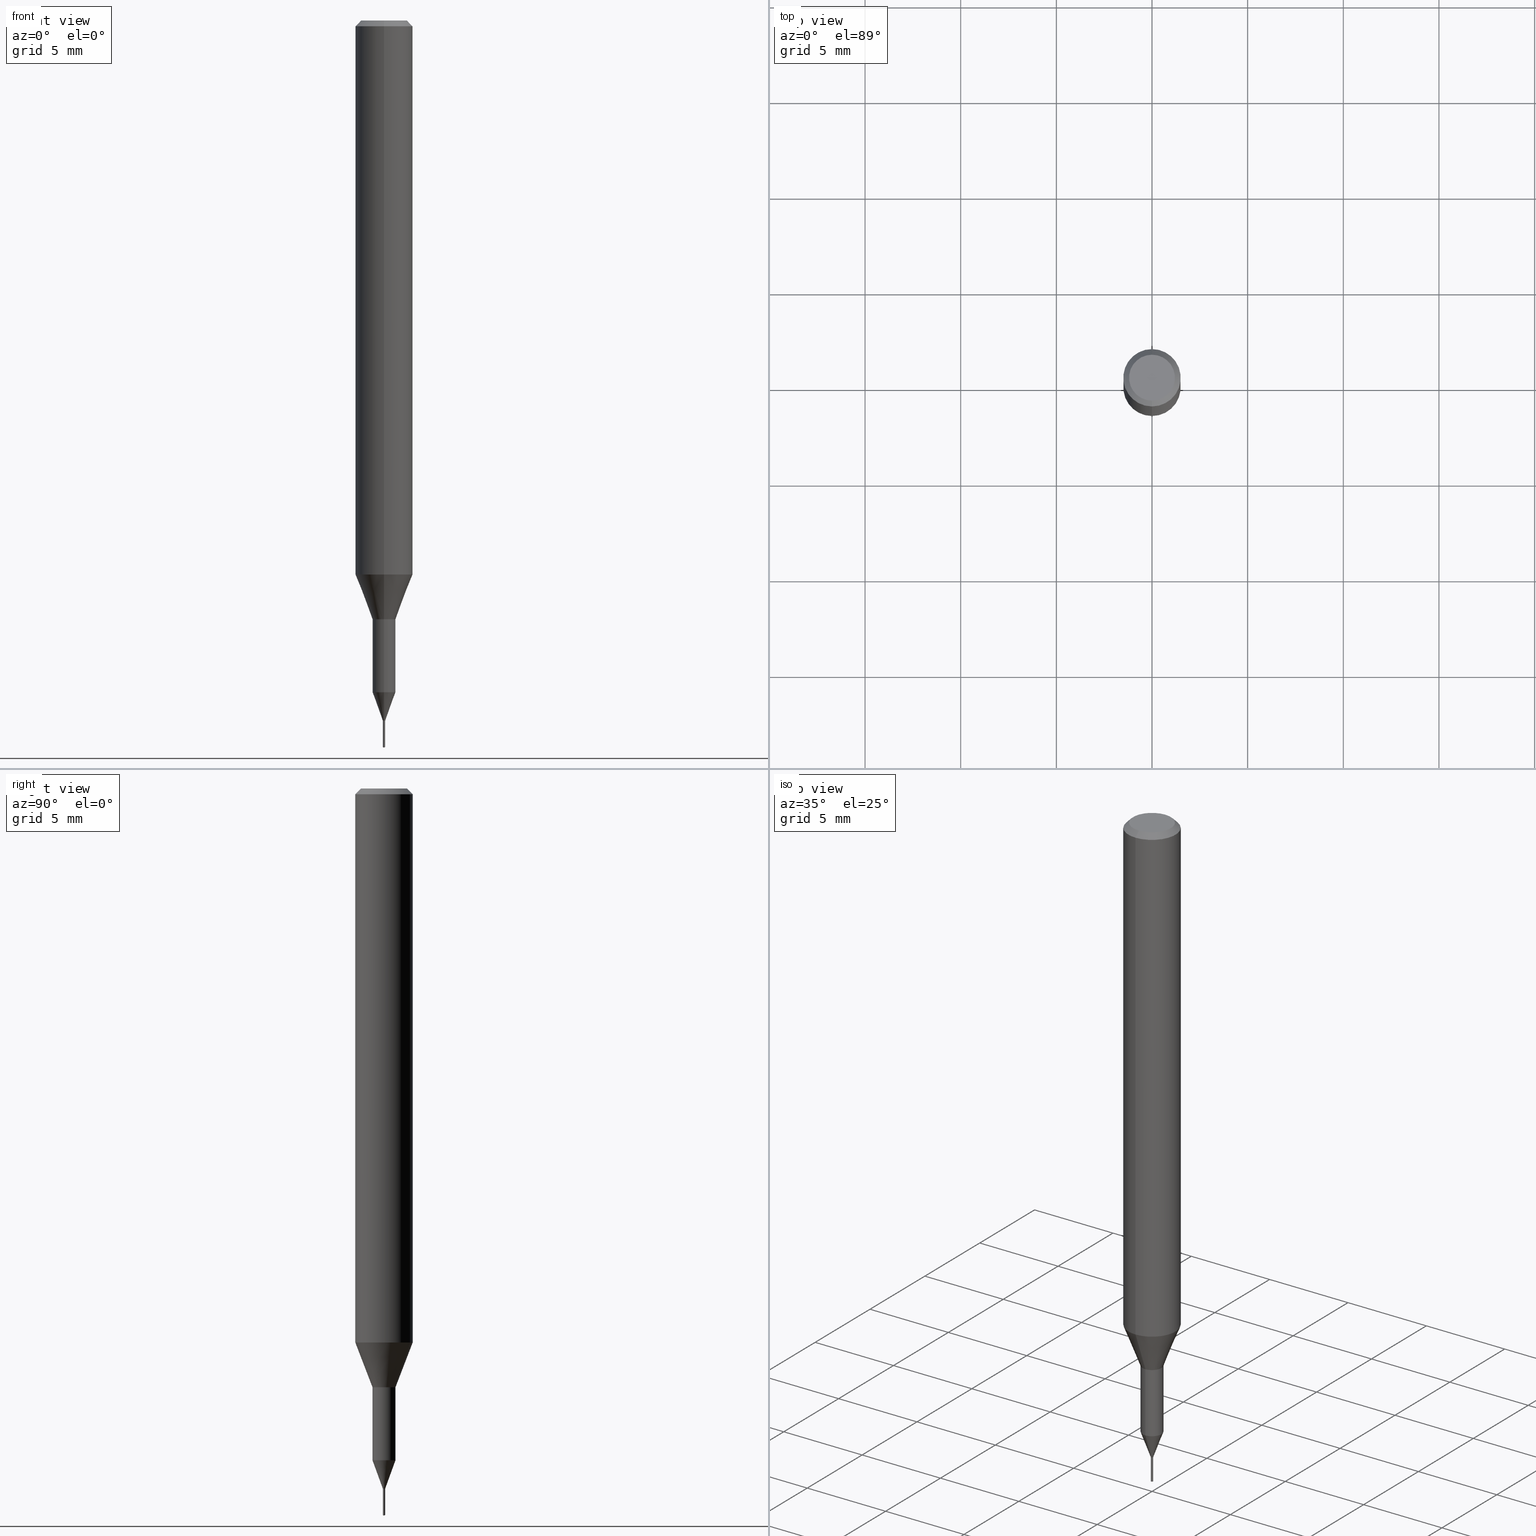
[diagram: canonical four-view strip — front | top / right | iso, engineering-drawing reading convention]
A machine part, canonical four-view strip (front | top / right | iso — engineering-drawing reading convention). The complete STEP part file that produces these views, byte-faithful:
ISO-10303-21;
HEADER;
FILE_DESCRIPTION(('no description'),'unknown implementation level');
FILE_NAME('C-UMD2012-014-Huellk.stp','  ',('CIMSOURCE GmbH'),('CADClick - KiM GmbH - www.kimweb.de'),'unknown preprocess','ACIS','unknown authorization');
FILE_SCHEMA(('automotive_design'));
ENDSEC;
DATA;
#1=MECHANICAL_DESIGN_GEOMETRIC_PRESENTATION_REPRESENTATION(' ',(#14,#15,#16,#17,#18,#19,#20,#21,#22,#23,#24,#25,#26,#27,#28,#29,#30,#31,#32,#33,#34,#35,#36,#37,#38,#39,#40,#41,#42,#43,#44,#45,#46,#47,#48,#49,#50,#51,#52,#53,#54,#55,#56,#57,#58,#59,#60,#61,#62,#63,#64,#65,#66,#67,#68,#69,#70,#71,#72,#73,#74,#75,#76,#77,#78,#79,#80,#81,#82,#83,#84,#85,#86,#87,#88,#89,#90,#91,#92),#10);
#2=PRODUCT_DEFINITION_CONTEXT('',#93,'design');
#3=APPLICATION_PROTOCOL_DEFINITION('INTERNATIONAL STANDARD','automotive_design',1994,#93);
#4=PRODUCT_CATEGORY_RELATIONSHIP('NONE','NONE',#94,#95);
#5=SHAPE_DEFINITION_REPRESENTATION(#96,#97);
#6=PRODUCT_DEFINITION_CONTEXT('',#98,'design');
#7=APPLICATION_PROTOCOL_DEFINITION('INTERNATIONAL STANDARD','automotive_design',1994,#98);
#8=PRODUCT_CATEGORY_RELATIONSHIP('NONE','NONE',#99,#100);
#9=SHAPE_DEFINITION_REPRESENTATION(#101,#102);
#10= (GEOMETRIC_REPRESENTATION_CONTEXT(3)GLOBAL_UNCERTAINTY_ASSIGNED_CONTEXT((#105))GLOBAL_UNIT_ASSIGNED_CONTEXT((#107,#108,#109))REPRESENTATION_CONTEXT('NONE','WORKSPACE'));
#14=STYLED_ITEM('',(#111),#112);
#15=STYLED_ITEM('',(#113),#114);
#16=STYLED_ITEM('',(#115),#116);
#17=STYLED_ITEM('',(#117),#118);
#18=STYLED_ITEM('',(#119),#120);
#19=STYLED_ITEM('',(#121),#122);
#20=STYLED_ITEM('',(#123),#124);
#21=STYLED_ITEM('',(#125),#126);
#22=STYLED_ITEM('',(#127),#128);
#23=STYLED_ITEM('',(#129),#130);
#24=STYLED_ITEM('',(#131),#132);
#25=STYLED_ITEM('',(#133),#134);
#26=STYLED_ITEM('',(#135),#136);
#27=STYLED_ITEM('',(#137),#138);
#28=STYLED_ITEM('',(#139),#140);
#29=STYLED_ITEM('',(#141),#142);
#30=STYLED_ITEM('',(#143),#144);
#31=STYLED_ITEM('',(#145),#146);
#32=STYLED_ITEM('',(#147),#148);
#33=STYLED_ITEM('',(#149),#150);
#34=STYLED_ITEM('',(#151),#152);
#35=STYLED_ITEM('',(#153),#154);
#36=STYLED_ITEM('',(#155),#156);
#37=STYLED_ITEM('',(#157),#158);
#38=STYLED_ITEM('',(#159),#160);
#39=STYLED_ITEM('',(#161),#162);
#40=STYLED_ITEM('',(#163),#164);
#41=STYLED_ITEM('',(#165),#166);
#42=STYLED_ITEM('',(#167),#168);
#43=STYLED_ITEM('',(#169),#170);
#44=STYLED_ITEM('',(#171),#172);
#45=STYLED_ITEM('',(#173),#174);
#46=STYLED_ITEM('',(#175),#176);
#47=STYLED_ITEM('',(#177),#178);
#48=STYLED_ITEM('',(#179),#180);
#49=STYLED_ITEM('',(#181),#182);
#50=STYLED_ITEM('',(#183),#184);
#51=STYLED_ITEM('',(#185),#186);
#52=STYLED_ITEM('',(#187),#188);
#53=STYLED_ITEM('',(#189),#190);
#54=STYLED_ITEM('',(#191),#192);
#55=STYLED_ITEM('',(#193),#194);
#56=STYLED_ITEM('',(#195),#196);
#57=STYLED_ITEM('',(#197),#198);
#58=STYLED_ITEM('',(#199),#200);
#59=STYLED_ITEM('',(#201),#202);
#60=STYLED_ITEM('',(#203),#204);
#61=STYLED_ITEM('',(#205),#206);
#62=STYLED_ITEM('',(#207),#208);
#63=STYLED_ITEM('',(#209),#210);
#64=STYLED_ITEM('',(#211),#212);
#65=STYLED_ITEM('',(#213),#214);
#66=STYLED_ITEM('',(#215),#216);
#67=STYLED_ITEM('',(#217),#218);
#68=STYLED_ITEM('',(#219),#220);
#69=STYLED_ITEM('',(#221),#222);
#70=STYLED_ITEM('',(#223),#224);
#71=STYLED_ITEM('',(#225),#226);
#72=STYLED_ITEM('',(#227),#228);
#73=STYLED_ITEM('',(#229),#230);
#74=STYLED_ITEM('',(#231),#232);
#75=STYLED_ITEM('',(#233),#234);
#76=STYLED_ITEM('',(#235),#236);
#77=STYLED_ITEM('',(#237),#238);
#78=STYLED_ITEM('',(#239),#240);
#79=STYLED_ITEM('',(#241),#242);
#80=STYLED_ITEM('',(#243),#244);
#81=STYLED_ITEM('',(#245),#246);
#82=STYLED_ITEM('',(#247),#248);
#83=STYLED_ITEM('',(#249),#250);
#84=STYLED_ITEM('',(#251),#252);
#85=STYLED_ITEM('',(#253),#254);
#86=STYLED_ITEM('',(#255),#256);
#87=STYLED_ITEM('',(#257),#258);
#88=STYLED_ITEM('',(#259),#260);
#89=STYLED_ITEM('',(#261),#262);
#90=STYLED_ITEM('',(#263),#264);
#91=STYLED_ITEM('',(#265),#266);
#92=STYLED_ITEM('',(#267),#268);
#93=APPLICATION_CONTEXT(' ');
#94=PRODUCT_CATEGORY('part','NONE');
#95=PRODUCT_RELATED_PRODUCT_CATEGORY('detail',' ',(#269));
#96=PRODUCT_DEFINITION_SHAPE('NONE','NONE',#270);
#97=ADVANCED_BREP_SHAPE_REPRESENTATION('1',(#240,#271),#10);
#98=APPLICATION_CONTEXT(' ');
#99=PRODUCT_CATEGORY('part','NONE');
#100=PRODUCT_RELATED_PRODUCT_CATEGORY('detail',' ',(#272));
#101=PRODUCT_DEFINITION_SHAPE('NONE','NONE',#273);
#102=ADVANCED_BREP_SHAPE_REPRESENTATION('2',(#252,#274),#10);
#105=UNCERTAINTY_MEASURE_WITH_UNIT(LENGTH_MEASURE(1.0E-006),#107,'','');
#107= (CONVERSION_BASED_UNIT('MILLIMETRE',#277)LENGTH_UNIT()NAMED_UNIT(#280));
#108= (NAMED_UNIT(#282)PLANE_ANGLE_UNIT()SI_UNIT($,.RADIAN.));
#109= (NAMED_UNIT(#282)SOLID_ANGLE_UNIT()SI_UNIT($,.STERADIAN.));
#111=PRESENTATION_STYLE_ASSIGNMENT((#288));
#112=EDGE_CURVE('',#210,#120,#289,.T.);
#113=PRESENTATION_STYLE_ASSIGNMENT((#290));
#114=VERTEX_POINT('',#291);
#115=PRESENTATION_STYLE_ASSIGNMENT((#292));
#116=EDGE_CURVE('',#140,#160,#293,.T.);
#117=PRESENTATION_STYLE_ASSIGNMENT((#294));
#118=EDGE_CURVE('',#154,#230,#295,.T.);
#119=PRESENTATION_STYLE_ASSIGNMENT((#296));
#120=VERTEX_POINT('',#297);
#121=PRESENTATION_STYLE_ASSIGNMENT((#298));
#122=ADVANCED_FACE('',(#299,#300),#301,.T.);
#123=PRESENTATION_STYLE_ASSIGNMENT((#302));
#124=EDGE_CURVE('',#222,#248,#303,.T.);
#125=PRESENTATION_STYLE_ASSIGNMENT((#304));
#126=ADVANCED_FACE('',(#305),#306,.T.);
#127=PRESENTATION_STYLE_ASSIGNMENT((#307));
#128=ADVANCED_FACE('',(#308),#309,.T.);
#129=PRESENTATION_STYLE_ASSIGNMENT((#310));
#130=EDGE_CURVE('',#160,#264,#311,.T.);
#131=PRESENTATION_STYLE_ASSIGNMENT((#312));
#132=ADVANCED_FACE('',(#313),#314,.T.);
#133=PRESENTATION_STYLE_ASSIGNMENT((#315));
#134=EDGE_CURVE('',#222,#258,#316,.T.);
#135=PRESENTATION_STYLE_ASSIGNMENT((#317));
#136=VERTEX_POINT('',#318);
#137=PRESENTATION_STYLE_ASSIGNMENT((#319));
#138=EDGE_CURVE('',#140,#136,#320,.T.);
#139=PRESENTATION_STYLE_ASSIGNMENT((#321));
#140=VERTEX_POINT('',#322);
#141=PRESENTATION_STYLE_ASSIGNMENT((#323));
#142=EDGE_CURVE('',#114,#162,#324,.T.);
#143=PRESENTATION_STYLE_ASSIGNMENT((#325));
#144=EDGE_CURVE('',#210,#150,#326,.T.);
#145=PRESENTATION_STYLE_ASSIGNMENT((#327));
#146=ADVANCED_FACE('',(#328),#329,.T.);
#147=PRESENTATION_STYLE_ASSIGNMENT((#330));
#148=EDGE_CURVE('',#230,#120,#331,.T.);
#149=PRESENTATION_STYLE_ASSIGNMENT((#332));
#150=VERTEX_POINT('',#333);
#151=PRESENTATION_STYLE_ASSIGNMENT((#334));
#152=ADVANCED_FACE('',(#335),#336,.T.);
#153=PRESENTATION_STYLE_ASSIGNMENT((#337));
#154=VERTEX_POINT('',#338);
#155=PRESENTATION_STYLE_ASSIGNMENT((#339));
#156=EDGE_CURVE('',#256,#222,#340,.T.);
#157=PRESENTATION_STYLE_ASSIGNMENT((#341));
#158=EDGE_CURVE('',#248,#222,#342,.T.);
#159=PRESENTATION_STYLE_ASSIGNMENT((#343));
#160=VERTEX_POINT('',#344);
#161=PRESENTATION_STYLE_ASSIGNMENT((#345));
#162=VERTEX_POINT('',#346);
#163=PRESENTATION_STYLE_ASSIGNMENT((#347));
#164=VERTEX_POINT('',#348);
#165=PRESENTATION_STYLE_ASSIGNMENT((#349));
#166=EDGE_CURVE('',#178,#140,#350,.T.);
#167=PRESENTATION_STYLE_ASSIGNMENT((#351));
#168=ADVANCED_FACE('',(#352),#353,.T.);
#169=PRESENTATION_STYLE_ASSIGNMENT((#354));
#170=EDGE_CURVE('',#164,#114,#355,.T.);
#171=PRESENTATION_STYLE_ASSIGNMENT((#356));
#172=VERTEX_POINT('',#357);
#173=PRESENTATION_STYLE_ASSIGNMENT((#358));
#174=EDGE_CURVE('',#150,#164,#359,.T.);
#175=PRESENTATION_STYLE_ASSIGNMENT((#360));
#176=EDGE_CURVE('',#178,#250,#361,.T.);
#177=PRESENTATION_STYLE_ASSIGNMENT((#362));
#178=VERTEX_POINT('',#363);
#179=PRESENTATION_STYLE_ASSIGNMENT((#364));
#180=EDGE_CURVE('',#120,#210,#365,.T.);
#181=PRESENTATION_STYLE_ASSIGNMENT((#366));
#182=EDGE_CURVE('',#230,#150,#367,.T.);
#183=PRESENTATION_STYLE_ASSIGNMENT((#368));
#184=ADVANCED_FACE('',(#369),#370,.T.);
#185=PRESENTATION_STYLE_ASSIGNMENT((#371));
#186=ADVANCED_FACE('',(#372),#373,.T.);
#187=PRESENTATION_STYLE_ASSIGNMENT((#374));
#188=ADVANCED_FACE('',(#375),#376,.T.);
#189=PRESENTATION_STYLE_ASSIGNMENT((#377));
#190=ADVANCED_FACE('',(#378),#379,.T.);
#191=PRESENTATION_STYLE_ASSIGNMENT((#380));
#192=ADVANCED_FACE('',(#381),#382,.T.);
#193=PRESENTATION_STYLE_ASSIGNMENT((#383));
#194=EDGE_CURVE('',#164,#154,#384,.T.);
#195=PRESENTATION_STYLE_ASSIGNMENT((#385));
#196=EDGE_CURVE('',#172,#248,#386,.T.);
#197=PRESENTATION_STYLE_ASSIGNMENT((#387));
#198=ADVANCED_FACE('',(#388),#389,.T.);
#199=PRESENTATION_STYLE_ASSIGNMENT((#390));
#200=EDGE_CURVE('',#256,#244,#391,.T.);
#201=PRESENTATION_STYLE_ASSIGNMENT((#392));
#202=ADVANCED_FACE('',(#393),#394,.T.);
#203=PRESENTATION_STYLE_ASSIGNMENT((#395));
#204=EDGE_CURVE('',#136,#250,#396,.T.);
#205=PRESENTATION_STYLE_ASSIGNMENT((#397));
#206=EDGE_CURVE('',#172,#258,#398,.T.);
#207=PRESENTATION_STYLE_ASSIGNMENT((#399));
#208=EDGE_CURVE('',#154,#164,#400,.T.);
#209=PRESENTATION_STYLE_ASSIGNMENT((#401));
#210=VERTEX_POINT('',#402);
#211=PRESENTATION_STYLE_ASSIGNMENT((#403));
#212=ADVANCED_FACE('',(#404),#405,.T.);
#213=PRESENTATION_STYLE_ASSIGNMENT((#406));
#214=EDGE_CURVE('',#150,#230,#407,.T.);
#215=PRESENTATION_STYLE_ASSIGNMENT((#408));
#216=EDGE_CURVE('',#162,#114,#409,.T.);
#217=PRESENTATION_STYLE_ASSIGNMENT((#410));
#218=EDGE_CURVE('',#258,#172,#411,.T.);
#219=PRESENTATION_STYLE_ASSIGNMENT((#412));
#220=EDGE_CURVE('',#264,#136,#413,.T.);
#221=PRESENTATION_STYLE_ASSIGNMENT((#414));
#222=VERTEX_POINT('',#415);
#223=PRESENTATION_STYLE_ASSIGNMENT((#416));
#224=EDGE_CURVE('',#162,#154,#417,.T.);
#225=PRESENTATION_STYLE_ASSIGNMENT((#418));
#226=EDGE_CURVE('',#244,#256,#419,.T.);
#227=PRESENTATION_STYLE_ASSIGNMENT((#420));
#228=ADVANCED_FACE('',(#421),#422,.T.);
#229=PRESENTATION_STYLE_ASSIGNMENT((#423));
#230=VERTEX_POINT('',#424);
#231=PRESENTATION_STYLE_ASSIGNMENT((#425));
#232=EDGE_CURVE('',#264,#160,#426,.T.);
#233=PRESENTATION_STYLE_ASSIGNMENT((#427));
#234=EDGE_CURVE('',#250,#178,#428,.T.);
#235=PRESENTATION_STYLE_ASSIGNMENT((#429));
#236=VERTEX_POINT('',#430);
#237=PRESENTATION_STYLE_ASSIGNMENT((#431));
#238=EDGE_CURVE('',#136,#140,#432,.T.);
#239=PRESENTATION_STYLE_ASSIGNMENT((#433));
#240=MANIFOLD_SOLID_BREP('1',#434);
#241=PRESENTATION_STYLE_ASSIGNMENT((#435));
#242=ADVANCED_FACE('',(#436),#437,.T.);
#243=PRESENTATION_STYLE_ASSIGNMENT((#438));
#244=VERTEX_POINT('',#439);
#245=PRESENTATION_STYLE_ASSIGNMENT((#440));
#246=EDGE_CURVE('',#248,#244,#441,.T.);
#247=PRESENTATION_STYLE_ASSIGNMENT((#442));
#248=VERTEX_POINT('',#443);
#249=PRESENTATION_STYLE_ASSIGNMENT((#444));
#250=VERTEX_POINT('',#445);
#251=PRESENTATION_STYLE_ASSIGNMENT((#446));
#252=MANIFOLD_SOLID_BREP('2',#447);
#253=PRESENTATION_STYLE_ASSIGNMENT((#448));
#254=EDGE_CURVE('',#258,#236,#449,.T.);
#255=PRESENTATION_STYLE_ASSIGNMENT((#450));
#256=VERTEX_POINT('',#451);
#257=PRESENTATION_STYLE_ASSIGNMENT((#452));
#258=VERTEX_POINT('',#453);
#259=PRESENTATION_STYLE_ASSIGNMENT((#454));
#260=ADVANCED_FACE('',(#455),#456,.T.);
#261=PRESENTATION_STYLE_ASSIGNMENT((#457));
#262=ADVANCED_FACE('',(#458),#459,.T.);
#263=PRESENTATION_STYLE_ASSIGNMENT((#460));
#264=VERTEX_POINT('',#461);
#265=PRESENTATION_STYLE_ASSIGNMENT((#462));
#266=ADVANCED_FACE('',(#463),#464,.T.);
#267=PRESENTATION_STYLE_ASSIGNMENT((#465));
#268=EDGE_CURVE('',#236,#172,#466,.T.);
#269=PRODUCT('1','1','PART-1-DESC',(#467));
#270=PRODUCT_DEFINITION('NONE','NONE',#468,#2);
#271=AXIS2_PLACEMENT_3D('',#469,#470,#471);
#272=PRODUCT('2','2','PART-2-DESC',(#472));
#273=PRODUCT_DEFINITION('NONE','NONE',#473,#6);
#274=AXIS2_PLACEMENT_3D('',#474,#475,#476);
#277=LENGTH_MEASURE_WITH_UNIT(LENGTH_MEASURE(1.0),#477);
#280=DIMENSIONAL_EXPONENTS(1.0,0.0,0.0,0.0,0.0,0.0,0.0);
#282=DIMENSIONAL_EXPONENTS(0.0,0.0,0.0,0.0,0.0,0.0,0.0);
#288=CURVE_STYLE('',#478,POSITIVE_LENGTH_MEASURE(1.0E-006),#479);
#289=CIRCLE('',#480,1.2);
#290=POINT_STYLE(' ',#481,POSITIVE_LENGTH_MEASURE(1.0E-006),#482);
#291=CARTESIAN_POINT('',(0.0,0.6,-31.3));
#292=CURVE_STYLE('',#483,POSITIVE_LENGTH_MEASURE(1.0E-006),#484);
#293=LINE('',#485,#486);
#294=CURVE_STYLE('',#487,POSITIVE_LENGTH_MEASURE(1.0E-006),#488);
#295=LINE('',#489,#490);
#296=POINT_STYLE(' ',#491,POSITIVE_LENGTH_MEASURE(1.0E-006),#492);
#297=CARTESIAN_POINT('',(1.46952762458685E-016,-1.2,0.0));
#298=SURFACE_STYLE_USAGE(.BOTH.,#493);
#299=FACE_BOUND('',#494,.T.);
#300=FACE_OUTER_BOUND('',#495,.T.);
#301=PLANE('',#496);
#302=CURVE_STYLE('',#497,POSITIVE_LENGTH_MEASURE(1.0E-006),#498);
#303=CIRCLE('',#499,0.06);
#304=SURFACE_STYLE_USAGE(.BOTH.,#500);
#305=FACE_OUTER_BOUND('',#501,.T.);
#306=CONICAL_SURFACE('',#502,0.329993192385445,0.348957653513031);
#307=SURFACE_STYLE_USAGE(.BOTH.,#503);
#308=FACE_OUTER_BOUND('',#504,.T.);
#309=CYLINDRICAL_SURFACE('',#505,0.06);
#310=CURVE_STYLE('',#506,POSITIVE_LENGTH_MEASURE(1.0E-006),#507);
#311=CIRCLE('',#508,0.0600363847708894);
#312=SURFACE_STYLE_USAGE(.BOTH.,#509);
#313=FACE_OUTER_BOUND('',#510,.T.);
#314=CONICAL_SURFACE('',#511,1.05,0.366459241971866);
#315=CURVE_STYLE('',#512,POSITIVE_LENGTH_MEASURE(1.0E-006),#513);
#316=LINE('',#514,#515);
#317=POINT_STYLE(' ',#516,POSITIVE_LENGTH_MEASURE(1.0E-006),#517);
#318=CARTESIAN_POINT('',(7.34702581975735E-017,-0.59995,-35.116));
#319=CURVE_STYLE('',#518,POSITIVE_LENGTH_MEASURE(1.0E-006),#519);
#320=CIRCLE('',#520,0.59995);
#321=POINT_STYLE(' ',#521,POSITIVE_LENGTH_MEASURE(1.0E-006),#522);
#322=CARTESIAN_POINT('',(0.0,0.59995,-35.116));
#323=CURVE_STYLE('',#523,POSITIVE_LENGTH_MEASURE(1.0E-006),#524);
#324=CIRCLE('',#525,0.6);
#325=CURVE_STYLE('',#526,POSITIVE_LENGTH_MEASURE(1.0E-006),#527);
#326=LINE('',#528,#529);
#327=SURFACE_STYLE_USAGE(.BOTH.,#530);
#328=FACE_OUTER_BOUND('',#531,.T.);
#329=CONICAL_SURFACE('',#532,0.03,1.30899696303431);
#330=CURVE_STYLE('',#533,POSITIVE_LENGTH_MEASURE(1.0E-006),#534);
#331=LINE('',#535,#536);
#332=POINT_STYLE(' ',#537,POSITIVE_LENGTH_MEASURE(1.0E-006),#538);
#333=CARTESIAN_POINT('',(0.0,1.5,-0.300000000000001));
#334=SURFACE_STYLE_USAGE(.BOTH.,#539);
#335=FACE_OUTER_BOUND('',#540,.T.);
#336=CONICAL_SURFACE('',#541,0.0605181940700808,1.47460515957787);
#337=POINT_STYLE(' ',#542,POSITIVE_LENGTH_MEASURE(1.0E-006),#543);
#338=CARTESIAN_POINT('',(1.83690953073357E-016,-1.5,-28.955));
#339=CURVE_STYLE('',#544,POSITIVE_LENGTH_MEASURE(1.0E-006),#545);
#340=LINE('',#546,#547);
#341=CURVE_STYLE('',#548,POSITIVE_LENGTH_MEASURE(1.0E-006),#549);
#342=CIRCLE('',#550,0.06);
#343=POINT_STYLE(' ',#551,POSITIVE_LENGTH_MEASURE(1.0E-006),#552);
#344=CARTESIAN_POINT('',(0.0,0.0600363847708894,-36.5999));
#345=POINT_STYLE(' ',#553,POSITIVE_LENGTH_MEASURE(1.0E-006),#554);
#346=CARTESIAN_POINT('',(7.34763812293426E-017,-0.6,-31.3));
#347=POINT_STYLE(' ',#555,POSITIVE_LENGTH_MEASURE(1.0E-006),#556);
#348=CARTESIAN_POINT('',(0.0,1.5,-28.955));
#349=CURVE_STYLE('',#557,POSITIVE_LENGTH_MEASURE(1.0E-006),#558);
#350=LINE('',#559,#560);
#351=SURFACE_STYLE_USAGE(.BOTH.,#561);
#352=FACE_OUTER_BOUND('',#562,.T.);
#353=CONICAL_SURFACE('',#563,0.329993192385445,0.348957653513031);
#354=CURVE_STYLE('',#564,POSITIVE_LENGTH_MEASURE(1.0E-006),#565);
#355=LINE('',#566,#567);
#356=POINT_STYLE(' ',#568,POSITIVE_LENGTH_MEASURE(1.0E-006),#569);
#357=CARTESIAN_POINT('',(0.06,7.34763812293426E-018,-37.98392305));
#358=CURVE_STYLE('',#570,POSITIVE_LENGTH_MEASURE(1.0E-006),#571);
#359=LINE('',#572,#573);
#360=CURVE_STYLE('',#574,POSITIVE_LENGTH_MEASURE(1.0E-006),#575);
#361=CIRCLE('',#576,0.59995);
#362=POINT_STYLE(' ',#577,POSITIVE_LENGTH_MEASURE(1.0E-006),#578);
#363=CARTESIAN_POINT('',(0.0,0.59995,-31.3));
#364=CURVE_STYLE('',#579,POSITIVE_LENGTH_MEASURE(1.0E-006),#580);
#365=CIRCLE('',#581,1.2);
#366=CURVE_STYLE('',#582,POSITIVE_LENGTH_MEASURE(1.0E-006),#583);
#367=CIRCLE('',#584,1.5);
#368=SURFACE_STYLE_USAGE(.BOTH.,#585);
#369=FACE_OUTER_BOUND('',#586,.T.);
#370=CONICAL_SURFACE('',#587,0.0605181940700808,1.47460515957787);
#371=SURFACE_STYLE_USAGE(.BOTH.,#588);
#372=FACE_OUTER_BOUND('',#589,.T.);
#373=CYLINDRICAL_SURFACE('',#590,0.06);
#374=SURFACE_STYLE_USAGE(.BOTH.,#591);
#375=FACE_OUTER_BOUND('',#592,.T.);
#376=CYLINDRICAL_SURFACE('',#593,0.59995);
#377=SURFACE_STYLE_USAGE(.BOTH.,#594);
#378=FACE_OUTER_BOUND('',#595,.T.);
#379=CONICAL_SURFACE('',#596,0.03,1.30899696303431);
#380=SURFACE_STYLE_USAGE(.BOTH.,#597);
#381=FACE_OUTER_BOUND('',#598,.T.);
#382=CYLINDRICAL_SURFACE('',#599,1.5);
#383=CURVE_STYLE('',#600,POSITIVE_LENGTH_MEASURE(1.0E-006),#601);
#384=CIRCLE('',#602,1.5);
#385=CURVE_STYLE('',#603,POSITIVE_LENGTH_MEASURE(1.0E-006),#604);
#386=LINE('',#605,#606);
#387=SURFACE_STYLE_USAGE(.BOTH.,#607);
#388=FACE_OUTER_BOUND('',#608,.T.);
#389=CONICAL_SURFACE('',#609,1.35,0.785398163397447);
#390=CURVE_STYLE('',#610,POSITIVE_LENGTH_MEASURE(1.0E-006),#611);
#391=CIRCLE('',#612,0.0610363881401616);
#392=SURFACE_STYLE_USAGE(.BOTH.,#613);
#393=FACE_OUTER_BOUND('',#614,.T.);
#394=PLANE('',#615);
#395=CURVE_STYLE('',#616,POSITIVE_LENGTH_MEASURE(1.0E-006),#617);
#396=LINE('',#618,#619);
#397=CURVE_STYLE('',#620,POSITIVE_LENGTH_MEASURE(1.0E-006),#621);
#398=CIRCLE('',#622,0.06);
#399=CURVE_STYLE('',#623,POSITIVE_LENGTH_MEASURE(1.0E-006),#624);
#400=CIRCLE('',#625,1.5);
#401=POINT_STYLE(' ',#626,POSITIVE_LENGTH_MEASURE(1.0E-006),#627);
#402=CARTESIAN_POINT('',(0.0,1.2,0.0));
#403=SURFACE_STYLE_USAGE(.BOTH.,#628);
#404=FACE_OUTER_BOUND('',#629,.T.);
#405=CYLINDRICAL_SURFACE('',#630,1.5);
#406=CURVE_STYLE('',#631,POSITIVE_LENGTH_MEASURE(1.0E-006),#632);
#407=CIRCLE('',#633,1.5);
#408=CURVE_STYLE('',#634,POSITIVE_LENGTH_MEASURE(1.0E-006),#635);
#409=CIRCLE('',#636,0.6);
#410=CURVE_STYLE('',#637,POSITIVE_LENGTH_MEASURE(1.0E-006),#638);
#411=CIRCLE('',#639,0.06);
#412=CURVE_STYLE('',#640,POSITIVE_LENGTH_MEASURE(1.0E-006),#641);
#413=LINE('',#642,#643);
#414=POINT_STYLE(' ',#644,POSITIVE_LENGTH_MEASURE(1.0E-006),#645);
#415=CARTESIAN_POINT('',(-0.06,0.0,-36.6));
#416=CURVE_STYLE('',#646,POSITIVE_LENGTH_MEASURE(1.0E-006),#647);
#417=LINE('',#648,#649);
#418=CURVE_STYLE('',#650,POSITIVE_LENGTH_MEASURE(1.0E-006),#651);
#419=CIRCLE('',#652,0.0610363881401616);
#420=SURFACE_STYLE_USAGE(.BOTH.,#653);
#421=FACE_OUTER_BOUND('',#654,.T.);
#422=PLANE('',#655);
#423=POINT_STYLE(' ',#656,POSITIVE_LENGTH_MEASURE(1.0E-006),#657);
#424=CARTESIAN_POINT('',(1.83690953073357E-016,-1.5,-0.300000000000001));
#425=CURVE_STYLE('',#658,POSITIVE_LENGTH_MEASURE(1.0E-006),#659);
#426=CIRCLE('',#660,0.0600363847708894);
#427=CURVE_STYLE('',#661,POSITIVE_LENGTH_MEASURE(1.0E-006),#662);
#428=CIRCLE('',#663,0.59995);
#429=POINT_STYLE(' ',#664,POSITIVE_LENGTH_MEASURE(1.0E-006),#665);
#430=CARTESIAN_POINT('',(0.0,0.0,-38.0));
#431=CURVE_STYLE('',#666,POSITIVE_LENGTH_MEASURE(1.0E-006),#667);
#432=CIRCLE('',#668,0.59995);
#433=SURFACE_STYLE_USAGE(.BOTH.,#669);
#434=CLOSED_SHELL('',(#168,#188,#260,#192,#262,#266,#198,#212,#132,#122,#242,#126,#228));
#435=SURFACE_STYLE_USAGE(.BOTH.,#670);
#436=FACE_OUTER_BOUND('',#671,.T.);
#437=CYLINDRICAL_SURFACE('',#672,0.59995);
#438=POINT_STYLE(' ',#673,POSITIVE_LENGTH_MEASURE(1.0E-006),#674);
#439=CARTESIAN_POINT('',(0.0610363881401616,7.47455487308107E-018,-36.5999));
#440=CURVE_STYLE('',#675,POSITIVE_LENGTH_MEASURE(1.0E-006),#676);
#441=LINE('',#677,#678);
#442=POINT_STYLE(' ',#679,POSITIVE_LENGTH_MEASURE(1.0E-006),#680);
#443=CARTESIAN_POINT('',(0.06,7.34763812293426E-018,-36.6));
#444=POINT_STYLE(' ',#681,POSITIVE_LENGTH_MEASURE(1.0E-006),#682);
#445=CARTESIAN_POINT('',(7.34702581975735E-017,-0.59995,-31.3));
#446=SURFACE_STYLE_USAGE(.BOTH.,#683);
#447=CLOSED_SHELL('',(#146,#186,#184,#202,#152,#128,#190));
#448=CURVE_STYLE('',#684,POSITIVE_LENGTH_MEASURE(1.0E-006),#685);
#449=LINE('',#686,#687);
#450=POINT_STYLE(' ',#688,POSITIVE_LENGTH_MEASURE(1.0E-006),#689);
#451=CARTESIAN_POINT('',(-0.0610363881401616,0.0,-36.5999));
#452=POINT_STYLE(' ',#690,POSITIVE_LENGTH_MEASURE(1.0E-006),#691);
#453=CARTESIAN_POINT('',(-0.06,0.0,-37.98392305));
#454=SURFACE_STYLE_USAGE(.BOTH.,#692);
#455=FACE_OUTER_BOUND('',#693,.T.);
#456=CONICAL_SURFACE('',#694,1.05,0.366459241971866);
#457=SURFACE_STYLE_USAGE(.BOTH.,#695);
#458=FACE_OUTER_BOUND('',#696,.T.);
#459=CONICAL_SURFACE('',#697,1.35,0.785398163397447);
#460=POINT_STYLE(' ',#698,POSITIVE_LENGTH_MEASURE(1.0E-006),#699);
#461=CARTESIAN_POINT('',(7.35209382509561E-018,-0.0600363847708894,-36.5999));
#462=SURFACE_STYLE_USAGE(.BOTH.,#700);
#463=FACE_OUTER_BOUND('',#701,.T.);
#464=PLANE('',#702);
#465=CURVE_STYLE('',#703,POSITIVE_LENGTH_MEASURE(1.0E-006),#704);
#466=LINE('',#705,#706);
#467=PRODUCT_CONTEXT('',#93,'mechanical');
#468=PRODUCT_DEFINITION_FORMATION_WITH_SPECIFIED_SOURCE(' ','NONE',#269,.NOT_KNOWN.);
#469=CARTESIAN_POINT('',(0.0,0.0,0.0));
#470=DIRECTION('',(0.0,0.0,1.0));
#471=DIRECTION('',(1.0,0.0,0.0));
#472=PRODUCT_CONTEXT('',#98,'mechanical');
#473=PRODUCT_DEFINITION_FORMATION_WITH_SPECIFIED_SOURCE(' ','NONE',#272,.NOT_KNOWN.);
#474=CARTESIAN_POINT('',(0.0,0.0,0.0));
#475=DIRECTION('',(0.0,0.0,1.0));
#476=DIRECTION('',(1.0,0.0,0.0));
#477= (NAMED_UNIT(#280)LENGTH_UNIT()SI_UNIT(.MILLI.,.METRE.));
#478=DRAUGHTING_PRE_DEFINED_CURVE_FONT('continuous');
#479=COLOUR_RGB('',0.498039215803146,0.498039215803146,0.498039215803146);
#480=AXIS2_PLACEMENT_3D('',#708,#709,#710);
#481=PRE_DEFINED_MARKER('');
#482=COLOUR_RGB('',0.498039215803146,0.498039215803146,0.498039215803146);
#483=DRAUGHTING_PRE_DEFINED_CURVE_FONT('continuous');
#484=COLOUR_RGB('',0.498039215803146,0.498039215803146,0.498039215803146);
#485=CARTESIAN_POINT('',(-4.04111760113346E-017,0.329993192385445,-35.85795));
#486=VECTOR('',#711,1.0);
#487=DRAUGHTING_PRE_DEFINED_CURVE_FONT('continuous');
#488=COLOUR_RGB('',0.498039215803146,0.498039215803146,0.498039215803146);
#489=CARTESIAN_POINT('',(1.83690953073357E-016,-1.5,-14.6275));
#490=VECTOR('',#712,1.0);
#491=PRE_DEFINED_MARKER('');
#492=COLOUR_RGB('',0.498039215803146,0.498039215803146,0.498039215803146);
#493=SURFACE_SIDE_STYLE('',(#713));
#494=EDGE_LOOP('',(#714,#715));
#495=EDGE_LOOP('',(#716,#717));
#496=AXIS2_PLACEMENT_3D('',#718,#719,#720);
#497=DRAUGHTING_PRE_DEFINED_CURVE_FONT('continuous');
#498=COLOUR_RGB('',0.800000011920929,0.800000011920929,0.800000011920929);
#499=AXIS2_PLACEMENT_3D('',#721,#722,#723);
#500=SURFACE_SIDE_STYLE('',(#724));
#501=EDGE_LOOP('',(#725,#726,#727,#728));
#502=AXIS2_PLACEMENT_3D('',#729,#730,#731);
#503=SURFACE_SIDE_STYLE('',(#732));
#504=EDGE_LOOP('',(#733,#734,#735,#736));
#505=AXIS2_PLACEMENT_3D('',#737,#738,#739);
#506=DRAUGHTING_PRE_DEFINED_CURVE_FONT('continuous');
#507=COLOUR_RGB('',0.498039215803146,0.498039215803146,0.498039215803146);
#508=AXIS2_PLACEMENT_3D('',#740,#741,#742);
#509=SURFACE_SIDE_STYLE('',(#743));
#510=EDGE_LOOP('',(#744,#745,#746,#747));
#511=AXIS2_PLACEMENT_3D('',#748,#749,#750);
#512=DRAUGHTING_PRE_DEFINED_CURVE_FONT('continuous');
#513=COLOUR_RGB('',0.800000011920929,0.800000011920929,0.800000011920929);
#514=CARTESIAN_POINT('',(-0.06,-7.34763812293426E-018,-37.291961525));
#515=VECTOR('',#751,1.0);
#516=PRE_DEFINED_MARKER('');
#517=COLOUR_RGB('',0.498039215803146,0.498039215803146,0.498039215803146);
#518=DRAUGHTING_PRE_DEFINED_CURVE_FONT('continuous');
#519=COLOUR_RGB('',0.498039215803146,0.498039215803146,0.498039215803146);
#520=AXIS2_PLACEMENT_3D('',#752,#753,#754);
#521=PRE_DEFINED_MARKER('');
#522=COLOUR_RGB('',0.498039215803146,0.498039215803146,0.498039215803146);
#523=DRAUGHTING_PRE_DEFINED_CURVE_FONT('continuous');
#524=COLOUR_RGB('',0.498039215803146,0.498039215803146,0.498039215803146);
#525=AXIS2_PLACEMENT_3D('',#755,#756,#757);
#526=DRAUGHTING_PRE_DEFINED_CURVE_FONT('continuous');
#527=COLOUR_RGB('',0.498039215803146,0.498039215803146,0.498039215803146);
#528=CARTESIAN_POINT('',(-1.65321857766021E-016,1.35,-0.149999999999999));
#529=VECTOR('',#758,1.0);
#530=SURFACE_SIDE_STYLE('',(#759));
#531=EDGE_LOOP('',(#760,#761,#762));
#532=AXIS2_PLACEMENT_3D('',#763,#764,#765);
#533=DRAUGHTING_PRE_DEFINED_CURVE_FONT('continuous');
#534=COLOUR_RGB('',0.498039215803146,0.498039215803146,0.498039215803146);
#535=CARTESIAN_POINT('',(1.65321857766021E-016,-1.35,-0.149999999999999));
#536=VECTOR('',#766,1.0);
#537=PRE_DEFINED_MARKER('');
#538=COLOUR_RGB('',0.498039215803146,0.498039215803146,0.498039215803146);
#539=SURFACE_SIDE_STYLE('',(#767));
#540=EDGE_LOOP('',(#768,#769,#770,#771));
#541=AXIS2_PLACEMENT_3D('',#772,#773,#774);
#542=PRE_DEFINED_MARKER('');
#543=COLOUR_RGB('',0.498039215803146,0.498039215803146,0.498039215803146);
#544=DRAUGHTING_PRE_DEFINED_CURVE_FONT('continuous');
#545=COLOUR_RGB('',0.800000011920929,0.800000011920929,0.800000011920929);
#546=CARTESIAN_POINT('',(-0.0605181940700808,-7.41109649800767E-018,-36.59995));
#547=VECTOR('',#775,1.0);
#548=DRAUGHTING_PRE_DEFINED_CURVE_FONT('continuous');
#549=COLOUR_RGB('',0.800000011920929,0.800000011920929,0.800000011920929);
#550=AXIS2_PLACEMENT_3D('',#776,#777,#778);
#551=PRE_DEFINED_MARKER('');
#552=COLOUR_RGB('',0.498039215803146,0.498039215803146,0.498039215803146);
#553=PRE_DEFINED_MARKER('');
#554=COLOUR_RGB('',0.498039215803146,0.498039215803146,0.498039215803146);
#555=PRE_DEFINED_MARKER('');
#556=COLOUR_RGB('',0.498039215803146,0.498039215803146,0.498039215803146);
#557=DRAUGHTING_PRE_DEFINED_CURVE_FONT('continuous');
#558=COLOUR_RGB('',0.498039215803146,0.498039215803146,0.498039215803146);
#559=CARTESIAN_POINT('',(-7.34702581975735E-017,0.59995,-33.208));
#560=VECTOR('',#779,1.0);
#561=SURFACE_SIDE_STYLE('',(#780));
#562=EDGE_LOOP('',(#781,#782,#783,#784));
#563=AXIS2_PLACEMENT_3D('',#785,#786,#787);
#564=DRAUGHTING_PRE_DEFINED_CURVE_FONT('continuous');
#565=COLOUR_RGB('',0.498039215803146,0.498039215803146,0.498039215803146);
#566=CARTESIAN_POINT('',(-1.2858366715135E-016,1.05,-30.1275));
#567=VECTOR('',#788,1.0);
#568=PRE_DEFINED_MARKER('');
#569=COLOUR_RGB('',0.800000011920929,0.800000011920929,0.800000011920929);
#570=DRAUGHTING_PRE_DEFINED_CURVE_FONT('continuous');
#571=COLOUR_RGB('',0.498039215803146,0.498039215803146,0.498039215803146);
#572=CARTESIAN_POINT('',(-1.83690953073357E-016,1.5,-14.6275));
#573=VECTOR('',#789,1.0);
#574=DRAUGHTING_PRE_DEFINED_CURVE_FONT('continuous');
#575=COLOUR_RGB('',0.498039215803146,0.498039215803146,0.498039215803146);
#576=AXIS2_PLACEMENT_3D('',#790,#791,#792);
#577=PRE_DEFINED_MARKER('');
#578=COLOUR_RGB('',0.498039215803146,0.498039215803146,0.498039215803146);
#579=DRAUGHTING_PRE_DEFINED_CURVE_FONT('continuous');
#580=COLOUR_RGB('',0.498039215803146,0.498039215803146,0.498039215803146);
#581=AXIS2_PLACEMENT_3D('',#793,#794,#795);
#582=DRAUGHTING_PRE_DEFINED_CURVE_FONT('continuous');
#583=COLOUR_RGB('',0.498039215803146,0.498039215803146,0.498039215803146);
#584=AXIS2_PLACEMENT_3D('',#796,#797,#798);
#585=SURFACE_SIDE_STYLE('',(#799));
#586=EDGE_LOOP('',(#800,#801,#802,#803));
#587=AXIS2_PLACEMENT_3D('',#804,#805,#806);
#588=SURFACE_SIDE_STYLE('',(#807));
#589=EDGE_LOOP('',(#808,#809,#810,#811));
#590=AXIS2_PLACEMENT_3D('',#812,#813,#814);
#591=SURFACE_SIDE_STYLE('',(#815));
#592=EDGE_LOOP('',(#816,#817,#818,#819));
#593=AXIS2_PLACEMENT_3D('',#820,#821,#822);
#594=SURFACE_SIDE_STYLE('',(#823));
#595=EDGE_LOOP('',(#824,#825,#826));
#596=AXIS2_PLACEMENT_3D('',#827,#828,#829);
#597=SURFACE_SIDE_STYLE('',(#830));
#598=EDGE_LOOP('',(#831,#832,#833,#834));
#599=AXIS2_PLACEMENT_3D('',#835,#836,#837);
#600=DRAUGHTING_PRE_DEFINED_CURVE_FONT('continuous');
#601=COLOUR_RGB('',0.498039215803146,0.498039215803146,0.498039215803146);
#602=AXIS2_PLACEMENT_3D('',#838,#839,#840);
#603=DRAUGHTING_PRE_DEFINED_CURVE_FONT('continuous');
#604=COLOUR_RGB('',0.800000011920929,0.800000011920929,0.800000011920929);
#605=CARTESIAN_POINT('',(0.06,7.34763812293426E-018,-37.291961525));
#606=VECTOR('',#841,1.0);
#607=SURFACE_SIDE_STYLE('',(#842));
#608=EDGE_LOOP('',(#843,#844,#845,#846));
#609=AXIS2_PLACEMENT_3D('',#847,#848,#849);
#610=DRAUGHTING_PRE_DEFINED_CURVE_FONT('continuous');
#611=COLOUR_RGB('',0.800000011920929,0.800000011920929,0.800000011920929);
#612=AXIS2_PLACEMENT_3D('',#850,#851,#852);
#613=SURFACE_SIDE_STYLE('',(#853));
#614=EDGE_LOOP('',(#854,#855));
#615=AXIS2_PLACEMENT_3D('',#856,#857,#858);
#616=DRAUGHTING_PRE_DEFINED_CURVE_FONT('continuous');
#617=COLOUR_RGB('',0.498039215803146,0.498039215803146,0.498039215803146);
#618=CARTESIAN_POINT('',(7.34702581975735E-017,-0.59995,-33.208));
#619=VECTOR('',#859,1.0);
#620=DRAUGHTING_PRE_DEFINED_CURVE_FONT('continuous');
#621=COLOUR_RGB('',0.800000011920929,0.800000011920929,0.800000011920929);
#622=AXIS2_PLACEMENT_3D('',#860,#861,#862);
#623=DRAUGHTING_PRE_DEFINED_CURVE_FONT('continuous');
#624=COLOUR_RGB('',0.498039215803146,0.498039215803146,0.498039215803146);
#625=AXIS2_PLACEMENT_3D('',#863,#864,#865);
#626=PRE_DEFINED_MARKER('');
#627=COLOUR_RGB('',0.498039215803146,0.498039215803146,0.498039215803146);
#628=SURFACE_SIDE_STYLE('',(#866));
#629=EDGE_LOOP('',(#867,#868,#869,#870));
#630=AXIS2_PLACEMENT_3D('',#871,#872,#873);
#631=DRAUGHTING_PRE_DEFINED_CURVE_FONT('continuous');
#632=COLOUR_RGB('',0.498039215803146,0.498039215803146,0.498039215803146);
#633=AXIS2_PLACEMENT_3D('',#874,#875,#876);
#634=DRAUGHTING_PRE_DEFINED_CURVE_FONT('continuous');
#635=COLOUR_RGB('',0.498039215803146,0.498039215803146,0.498039215803146);
#636=AXIS2_PLACEMENT_3D('',#877,#878,#879);
#637=DRAUGHTING_PRE_DEFINED_CURVE_FONT('continuous');
#638=COLOUR_RGB('',0.800000011920929,0.800000011920929,0.800000011920929);
#639=AXIS2_PLACEMENT_3D('',#880,#881,#882);
#640=DRAUGHTING_PRE_DEFINED_CURVE_FONT('continuous');
#641=COLOUR_RGB('',0.498039215803146,0.498039215803146,0.498039215803146);
#642=CARTESIAN_POINT('',(4.04111760113346E-017,-0.329993192385445,-35.85795));
#643=VECTOR('',#883,1.0);
#644=PRE_DEFINED_MARKER('');
#645=COLOUR_RGB('',0.800000011920929,0.800000011920929,0.800000011920929);
#646=DRAUGHTING_PRE_DEFINED_CURVE_FONT('continuous');
#647=COLOUR_RGB('',0.498039215803146,0.498039215803146,0.498039215803146);
#648=CARTESIAN_POINT('',(1.2858366715135E-016,-1.05,-30.1275));
#649=VECTOR('',#884,1.0);
#650=DRAUGHTING_PRE_DEFINED_CURVE_FONT('continuous');
#651=COLOUR_RGB('',0.800000011920929,0.800000011920929,0.800000011920929);
#652=AXIS2_PLACEMENT_3D('',#885,#886,#887);
#653=SURFACE_SIDE_STYLE('',(#888));
#654=EDGE_LOOP('',(#889,#890));
#655=AXIS2_PLACEMENT_3D('',#891,#892,#893);
#656=PRE_DEFINED_MARKER('');
#657=COLOUR_RGB('',0.498039215803146,0.498039215803146,0.498039215803146);
#658=DRAUGHTING_PRE_DEFINED_CURVE_FONT('continuous');
#659=COLOUR_RGB('',0.498039215803146,0.498039215803146,0.498039215803146);
#660=AXIS2_PLACEMENT_3D('',#894,#895,#896);
#661=DRAUGHTING_PRE_DEFINED_CURVE_FONT('continuous');
#662=COLOUR_RGB('',0.498039215803146,0.498039215803146,0.498039215803146);
#663=AXIS2_PLACEMENT_3D('',#897,#898,#899);
#664=PRE_DEFINED_MARKER('');
#665=COLOUR_RGB('',0.800000011920929,0.800000011920929,0.800000011920929);
#666=DRAUGHTING_PRE_DEFINED_CURVE_FONT('continuous');
#667=COLOUR_RGB('',0.498039215803146,0.498039215803146,0.498039215803146);
#668=AXIS2_PLACEMENT_3D('',#900,#901,#902);
#669=SURFACE_SIDE_STYLE('',(#903));
#670=SURFACE_SIDE_STYLE('',(#904));
#671=EDGE_LOOP('',(#905,#906,#907,#908));
#672=AXIS2_PLACEMENT_3D('',#909,#910,#911);
#673=PRE_DEFINED_MARKER('');
#674=COLOUR_RGB('',0.800000011920929,0.800000011920929,0.800000011920929);
#675=DRAUGHTING_PRE_DEFINED_CURVE_FONT('continuous');
#676=COLOUR_RGB('',0.800000011920929,0.800000011920929,0.800000011920929);
#677=CARTESIAN_POINT('',(0.0605181940700808,7.41109649800767E-018,-36.59995));
#678=VECTOR('',#912,1.0);
#679=PRE_DEFINED_MARKER('');
#680=COLOUR_RGB('',0.800000011920929,0.800000011920929,0.800000011920929);
#681=PRE_DEFINED_MARKER('');
#682=COLOUR_RGB('',0.498039215803146,0.498039215803146,0.498039215803146);
#683=SURFACE_SIDE_STYLE('',(#913));
#684=DRAUGHTING_PRE_DEFINED_CURVE_FONT('continuous');
#685=COLOUR_RGB('',0.800000011920929,0.800000011920929,0.800000011920929);
#686=CARTESIAN_POINT('',(-0.03,-3.67381906146713E-018,-37.991961525));
#687=VECTOR('',#914,1.0);
#688=PRE_DEFINED_MARKER('');
#689=COLOUR_RGB('',0.800000011920929,0.800000011920929,0.800000011920929);
#690=PRE_DEFINED_MARKER('');
#691=COLOUR_RGB('',0.800000011920929,0.800000011920929,0.800000011920929);
#692=SURFACE_SIDE_STYLE('',(#915));
#693=EDGE_LOOP('',(#916,#917,#918,#919));
#694=AXIS2_PLACEMENT_3D('',#920,#921,#922);
#695=SURFACE_SIDE_STYLE('',(#923));
#696=EDGE_LOOP('',(#924,#925,#926,#927));
#697=AXIS2_PLACEMENT_3D('',#928,#929,#930);
#698=PRE_DEFINED_MARKER('');
#699=COLOUR_RGB('',0.498039215803146,0.498039215803146,0.498039215803146);
#700=SURFACE_SIDE_STYLE('',(#931));
#701=EDGE_LOOP('',(#932,#933));
#702=AXIS2_PLACEMENT_3D('',#934,#935,#936);
#703=DRAUGHTING_PRE_DEFINED_CURVE_FONT('continuous');
#704=COLOUR_RGB('',0.800000011920929,0.800000011920929,0.800000011920929);
#705=CARTESIAN_POINT('',(0.03,3.67381906146713E-018,-37.991961525));
#706=VECTOR('',#937,1.0);
#708=CARTESIAN_POINT('',(0.0,0.0,0.0));
#709=DIRECTION('',(0.0,0.0,-1.0));
#710=DIRECTION('',(0.0,1.0,0.0));
#711=DIRECTION('',(4.18715530249598E-017,-0.341918469508717,-0.939729620799949));
#712=DIRECTION('',(-0.0,-0.0,1.0));
#713=SURFACE_STYLE_FILL_AREA(#938);
#714=ORIENTED_EDGE('',*,*,#176,.F.);
#715=ORIENTED_EDGE('',*,*,#234,.F.);
#716=ORIENTED_EDGE('',*,*,#142,.T.);
#717=ORIENTED_EDGE('',*,*,#216,.T.);
#718=CARTESIAN_POINT('',(0.0,0.599975,-31.3));
#719=DIRECTION('',(0.0,1.77635683940045E-011,-1.0));
#720=DIRECTION('',(0.0,1.0,1.77635683940045E-011));
#721=CARTESIAN_POINT('',(0.0,0.0,-36.6));
#722=DIRECTION('',(0.0,0.0,-1.0));
#723=DIRECTION('',(-1.0,0.0,0.0));
#724=SURFACE_STYLE_FILL_AREA(#939);
#725=ORIENTED_EDGE('',*,*,#116,.T.);
#726=ORIENTED_EDGE('',*,*,#232,.F.);
#727=ORIENTED_EDGE('',*,*,#220,.T.);
#728=ORIENTED_EDGE('',*,*,#238,.T.);
#729=CARTESIAN_POINT('',(0.0,0.0,-35.85795));
#730=DIRECTION('',(-0.0,-0.0,1.0));
#731=DIRECTION('',(0.0,1.0,0.0));
#732=SURFACE_STYLE_FILL_AREA(#940);
#733=ORIENTED_EDGE('',*,*,#134,.T.);
#734=ORIENTED_EDGE('',*,*,#206,.F.);
#735=ORIENTED_EDGE('',*,*,#196,.T.);
#736=ORIENTED_EDGE('',*,*,#158,.T.);
#737=CARTESIAN_POINT('',(0.0,0.0,-37.291961525));
#738=DIRECTION('',(-0.0,-0.0,1.0));
#739=DIRECTION('',(-1.0,0.0,0.0));
#740=CARTESIAN_POINT('',(0.0,0.0,-36.5999));
#741=DIRECTION('',(0.0,0.0,-1.0));
#742=DIRECTION('',(0.0,1.0,0.0));
#743=SURFACE_STYLE_FILL_AREA(#941);
#744=ORIENTED_EDGE('',*,*,#170,.T.);
#745=ORIENTED_EDGE('',*,*,#216,.F.);
#746=ORIENTED_EDGE('',*,*,#224,.T.);
#747=ORIENTED_EDGE('',*,*,#208,.T.);
#748=CARTESIAN_POINT('',(0.0,0.0,-30.1275));
#749=DIRECTION('',(-0.0,-0.0,1.0));
#750=DIRECTION('',(0.0,1.0,0.0));
#751=DIRECTION('',(0.0,0.0,-1.0));
#752=CARTESIAN_POINT('',(0.0,0.0,-35.116));
#753=DIRECTION('',(0.0,0.0,-1.0));
#754=DIRECTION('',(0.0,1.0,0.0));
#755=CARTESIAN_POINT('',(0.0,0.0,-31.3));
#756=DIRECTION('',(0.0,0.0,-1.0));
#757=DIRECTION('',(0.0,1.0,0.0));
#758=DIRECTION('',(-8.65927457071934E-017,0.707106781186546,-0.707106781186549));
#759=SURFACE_STYLE_FILL_AREA(#942);
#760=ORIENTED_EDGE('',*,*,#268,.F.);
#761=ORIENTED_EDGE('',*,*,#254,.F.);
#762=ORIENTED_EDGE('',*,*,#218,.T.);
#763=CARTESIAN_POINT('',(0.0,0.0,-37.991961525));
#764=DIRECTION('',(-0.0,-0.0,1.0));
#765=DIRECTION('',(-1.0,0.0,0.0));
#766=DIRECTION('',(-8.65927457071934E-017,0.707106781186546,0.707106781186549));
#767=SURFACE_STYLE_FILL_AREA(#943);
#768=ORIENTED_EDGE('',*,*,#156,.T.);
#769=ORIENTED_EDGE('',*,*,#158,.F.);
#770=ORIENTED_EDGE('',*,*,#246,.T.);
#771=ORIENTED_EDGE('',*,*,#226,.T.);
#772=CARTESIAN_POINT('',(0.0,0.0,-36.59995));
#773=DIRECTION('',(-0.0,-0.0,1.0));
#774=DIRECTION('',(-1.0,0.0,0.0));
#775=DIRECTION('',(0.99537719579173,1.21894523841645E-016,-0.0960428971751271));
#776=CARTESIAN_POINT('',(0.0,0.0,-36.6));
#777=DIRECTION('',(0.0,0.0,-1.0));
#778=DIRECTION('',(-1.0,0.0,0.0));
#779=DIRECTION('',(0.0,0.0,-1.0));
#780=SURFACE_STYLE_FILL_AREA(#944);
#781=ORIENTED_EDGE('',*,*,#116,.F.);
#782=ORIENTED_EDGE('',*,*,#138,.T.);
#783=ORIENTED_EDGE('',*,*,#220,.F.);
#784=ORIENTED_EDGE('',*,*,#130,.F.);
#785=CARTESIAN_POINT('',(0.0,0.0,-35.85795));
#786=DIRECTION('',(-0.0,-0.0,1.0));
#787=DIRECTION('',(0.0,1.0,0.0));
#788=DIRECTION('',(4.38791184365088E-017,-0.358312026550805,-0.93360189140182));
#789=DIRECTION('',(0.0,0.0,-1.0));
#790=CARTESIAN_POINT('',(0.0,0.0,-31.3));
#791=DIRECTION('',(0.0,0.0,-1.0));
#792=DIRECTION('',(0.0,1.0,0.0));
#793=CARTESIAN_POINT('',(0.0,0.0,0.0));
#794=DIRECTION('',(0.0,0.0,-1.0));
#795=DIRECTION('',(0.0,1.0,0.0));
#796=CARTESIAN_POINT('',(0.0,0.0,-0.300000000000001));
#797=DIRECTION('',(0.0,0.0,-1.0));
#798=DIRECTION('',(0.0,1.0,0.0));
#799=SURFACE_STYLE_FILL_AREA(#945);
#800=ORIENTED_EDGE('',*,*,#156,.F.);
#801=ORIENTED_EDGE('',*,*,#200,.T.);
#802=ORIENTED_EDGE('',*,*,#246,.F.);
#803=ORIENTED_EDGE('',*,*,#124,.F.);
#804=CARTESIAN_POINT('',(0.0,0.0,-36.59995));
#805=DIRECTION('',(-0.0,-0.0,1.0));
#806=DIRECTION('',(-1.0,0.0,0.0));
#807=SURFACE_STYLE_FILL_AREA(#946);
#808=ORIENTED_EDGE('',*,*,#134,.F.);
#809=ORIENTED_EDGE('',*,*,#124,.T.);
#810=ORIENTED_EDGE('',*,*,#196,.F.);
#811=ORIENTED_EDGE('',*,*,#218,.F.);
#812=CARTESIAN_POINT('',(0.0,0.0,-37.291961525));
#813=DIRECTION('',(-0.0,-0.0,1.0));
#814=DIRECTION('',(-1.0,0.0,0.0));
#815=SURFACE_STYLE_FILL_AREA(#947);
#816=ORIENTED_EDGE('',*,*,#166,.F.);
#817=ORIENTED_EDGE('',*,*,#176,.T.);
#818=ORIENTED_EDGE('',*,*,#204,.F.);
#819=ORIENTED_EDGE('',*,*,#138,.F.);
#820=CARTESIAN_POINT('',(0.0,0.0,-33.208));
#821=DIRECTION('',(-0.0,-0.0,1.0));
#822=DIRECTION('',(0.0,1.0,0.0));
#823=SURFACE_STYLE_FILL_AREA(#948);
#824=ORIENTED_EDGE('',*,*,#268,.T.);
#825=ORIENTED_EDGE('',*,*,#206,.T.);
#826=ORIENTED_EDGE('',*,*,#254,.T.);
#827=CARTESIAN_POINT('',(0.0,0.0,-37.991961525));
#828=DIRECTION('',(-0.0,-0.0,1.0));
#829=DIRECTION('',(-1.0,0.0,0.0));
#830=SURFACE_STYLE_FILL_AREA(#949);
#831=ORIENTED_EDGE('',*,*,#174,.F.);
#832=ORIENTED_EDGE('',*,*,#214,.T.);
#833=ORIENTED_EDGE('',*,*,#118,.F.);
#834=ORIENTED_EDGE('',*,*,#194,.F.);
#835=CARTESIAN_POINT('',(0.0,0.0,-14.6275));
#836=DIRECTION('',(-0.0,-0.0,1.0));
#837=DIRECTION('',(0.0,1.0,0.0));
#838=CARTESIAN_POINT('',(0.0,0.0,-28.955));
#839=DIRECTION('',(0.0,0.0,-1.0));
#840=DIRECTION('',(0.0,1.0,0.0));
#841=DIRECTION('',(-0.0,-0.0,1.0));
#842=SURFACE_STYLE_FILL_AREA(#950);
#843=ORIENTED_EDGE('',*,*,#144,.T.);
#844=ORIENTED_EDGE('',*,*,#182,.F.);
#845=ORIENTED_EDGE('',*,*,#148,.T.);
#846=ORIENTED_EDGE('',*,*,#180,.T.);
#847=CARTESIAN_POINT('',(0.0,0.0,-0.149999999999999));
#848=DIRECTION('',(0.0,-0.0,-1.0));
#849=DIRECTION('',(0.0,1.0,0.0));
#850=CARTESIAN_POINT('',(0.0,0.0,-36.5999));
#851=DIRECTION('',(0.0,0.0,-1.0));
#852=DIRECTION('',(-1.0,0.0,0.0));
#853=SURFACE_STYLE_FILL_AREA(#951);
#854=ORIENTED_EDGE('',*,*,#200,.F.);
#855=ORIENTED_EDGE('',*,*,#226,.F.);
#856=CARTESIAN_POINT('',(-0.0305181940700808,0.0,-36.5999));
#857=DIRECTION('',(0.0,0.0,1.0));
#858=DIRECTION('',(1.0,0.0,0.0));
#859=DIRECTION('',(-0.0,-0.0,1.0));
#860=CARTESIAN_POINT('',(0.0,0.0,-37.98392305));
#861=DIRECTION('',(0.0,0.0,-1.0));
#862=DIRECTION('',(-1.0,0.0,0.0));
#863=CARTESIAN_POINT('',(0.0,0.0,-28.955));
#864=DIRECTION('',(0.0,0.0,-1.0));
#865=DIRECTION('',(0.0,1.0,0.0));
#866=SURFACE_STYLE_FILL_AREA(#952);
#867=ORIENTED_EDGE('',*,*,#174,.T.);
#868=ORIENTED_EDGE('',*,*,#208,.F.);
#869=ORIENTED_EDGE('',*,*,#118,.T.);
#870=ORIENTED_EDGE('',*,*,#182,.T.);
#871=CARTESIAN_POINT('',(0.0,0.0,-14.6275));
#872=DIRECTION('',(-0.0,-0.0,1.0));
#873=DIRECTION('',(0.0,1.0,0.0));
#874=CARTESIAN_POINT('',(0.0,0.0,-0.300000000000001));
#875=DIRECTION('',(0.0,0.0,-1.0));
#876=DIRECTION('',(0.0,1.0,0.0));
#877=CARTESIAN_POINT('',(0.0,0.0,-31.3));
#878=DIRECTION('',(0.0,0.0,-1.0));
#879=DIRECTION('',(0.0,1.0,0.0));
#880=CARTESIAN_POINT('',(0.0,0.0,-37.98392305));
#881=DIRECTION('',(0.0,0.0,-1.0));
#882=DIRECTION('',(-1.0,0.0,0.0));
#883=DIRECTION('',(4.18715530249598E-017,-0.341918469508717,0.939729620799949));
#884=DIRECTION('',(4.38791184365088E-017,-0.358312026550805,0.93360189140182));
#885=CARTESIAN_POINT('',(0.0,0.0,-36.5999));
#886=DIRECTION('',(0.0,0.0,-1.0));
#887=DIRECTION('',(-1.0,0.0,0.0));
#888=SURFACE_STYLE_FILL_AREA(#953);
#889=ORIENTED_EDGE('',*,*,#130,.T.);
#890=ORIENTED_EDGE('',*,*,#232,.T.);
#891=CARTESIAN_POINT('',(0.0,0.0300181923854447,-36.5999));
#892=DIRECTION('',(0.0,0.0,-1.0));
#893=DIRECTION('',(0.0,1.0,0.0));
#894=CARTESIAN_POINT('',(0.0,0.0,-36.5999));
#895=DIRECTION('',(0.0,0.0,-1.0));
#896=DIRECTION('',(0.0,1.0,0.0));
#897=CARTESIAN_POINT('',(0.0,0.0,-31.3));
#898=DIRECTION('',(0.0,0.0,-1.0));
#899=DIRECTION('',(0.0,1.0,0.0));
#900=CARTESIAN_POINT('',(0.0,0.0,-35.116));
#901=DIRECTION('',(0.0,0.0,-1.0));
#902=DIRECTION('',(0.0,1.0,0.0));
#903=SURFACE_STYLE_FILL_AREA(#954);
#904=SURFACE_STYLE_FILL_AREA(#955);
#905=ORIENTED_EDGE('',*,*,#166,.T.);
#906=ORIENTED_EDGE('',*,*,#238,.F.);
#907=ORIENTED_EDGE('',*,*,#204,.T.);
#908=ORIENTED_EDGE('',*,*,#234,.T.);
#909=CARTESIAN_POINT('',(0.0,0.0,-33.208));
#910=DIRECTION('',(-0.0,-0.0,1.0));
#911=DIRECTION('',(0.0,1.0,0.0));
#912=DIRECTION('',(0.99537719579173,1.21894523841645E-016,0.0960428971751271));
#913=SURFACE_STYLE_FILL_AREA(#956);
#914=DIRECTION('',(0.965925832510705,1.18287891181378E-016,-0.258819021883056));
#915=SURFACE_STYLE_FILL_AREA(#957);
#916=ORIENTED_EDGE('',*,*,#170,.F.);
#917=ORIENTED_EDGE('',*,*,#194,.T.);
#918=ORIENTED_EDGE('',*,*,#224,.F.);
#919=ORIENTED_EDGE('',*,*,#142,.F.);
#920=CARTESIAN_POINT('',(0.0,0.0,-30.1275));
#921=DIRECTION('',(-0.0,-0.0,1.0));
#922=DIRECTION('',(0.0,1.0,0.0));
#923=SURFACE_STYLE_FILL_AREA(#958);
#924=ORIENTED_EDGE('',*,*,#144,.F.);
#925=ORIENTED_EDGE('',*,*,#112,.T.);
#926=ORIENTED_EDGE('',*,*,#148,.F.);
#927=ORIENTED_EDGE('',*,*,#214,.F.);
#928=CARTESIAN_POINT('',(0.0,0.0,-0.149999999999999));
#929=DIRECTION('',(0.0,-0.0,-1.0));
#930=DIRECTION('',(0.0,1.0,0.0));
#931=SURFACE_STYLE_FILL_AREA(#959);
#932=ORIENTED_EDGE('',*,*,#112,.F.);
#933=ORIENTED_EDGE('',*,*,#180,.F.);
#934=CARTESIAN_POINT('',(0.0,0.6,0.0));
#935=DIRECTION('',(-0.0,0.0,1.0));
#936=DIRECTION('',(0.0,-1.0,0.0));
#937=DIRECTION('',(0.965925832510705,1.18287891181378E-016,0.258819021883056));
#938=FILL_AREA_STYLE('',(#960));
#939=FILL_AREA_STYLE('',(#961));
#940=FILL_AREA_STYLE('',(#962));
#941=FILL_AREA_STYLE('',(#963));
#942=FILL_AREA_STYLE('',(#964));
#943=FILL_AREA_STYLE('',(#965));
#944=FILL_AREA_STYLE('',(#966));
#945=FILL_AREA_STYLE('',(#967));
#946=FILL_AREA_STYLE('',(#968));
#947=FILL_AREA_STYLE('',(#969));
#948=FILL_AREA_STYLE('',(#970));
#949=FILL_AREA_STYLE('',(#971));
#950=FILL_AREA_STYLE('',(#972));
#951=FILL_AREA_STYLE('',(#973));
#952=FILL_AREA_STYLE('',(#974));
#953=FILL_AREA_STYLE('',(#975));
#954=FILL_AREA_STYLE('',(#976));
#955=FILL_AREA_STYLE('',(#977));
#956=FILL_AREA_STYLE('',(#978));
#957=FILL_AREA_STYLE('',(#979));
#958=FILL_AREA_STYLE('',(#980));
#959=FILL_AREA_STYLE('',(#981));
#960=FILL_AREA_STYLE_COLOUR('',#982);
#961=FILL_AREA_STYLE_COLOUR('',#983);
#962=FILL_AREA_STYLE_COLOUR('',#984);
#963=FILL_AREA_STYLE_COLOUR('',#985);
#964=FILL_AREA_STYLE_COLOUR('',#986);
#965=FILL_AREA_STYLE_COLOUR('',#987);
#966=FILL_AREA_STYLE_COLOUR('',#988);
#967=FILL_AREA_STYLE_COLOUR('',#989);
#968=FILL_AREA_STYLE_COLOUR('',#990);
#969=FILL_AREA_STYLE_COLOUR('',#991);
#970=FILL_AREA_STYLE_COLOUR('',#992);
#971=FILL_AREA_STYLE_COLOUR('',#993);
#972=FILL_AREA_STYLE_COLOUR('',#994);
#973=FILL_AREA_STYLE_COLOUR('',#995);
#974=FILL_AREA_STYLE_COLOUR('',#996);
#975=FILL_AREA_STYLE_COLOUR('',#997);
#976=FILL_AREA_STYLE_COLOUR('',#998);
#977=FILL_AREA_STYLE_COLOUR('',#999);
#978=FILL_AREA_STYLE_COLOUR('',#1000);
#979=FILL_AREA_STYLE_COLOUR('',#1001);
#980=FILL_AREA_STYLE_COLOUR('',#1002);
#981=FILL_AREA_STYLE_COLOUR('',#1003);
#982=COLOUR_RGB('',0.498039215803146,0.498039215803146,0.498039215803146);
#983=COLOUR_RGB('',0.498039215803146,0.498039215803146,0.498039215803146);
#984=COLOUR_RGB('',0.800000011920929,0.800000011920929,0.800000011920929);
#985=COLOUR_RGB('',0.498039215803146,0.498039215803146,0.498039215803146);
#986=COLOUR_RGB('',0.800000011920929,0.800000011920929,0.800000011920929);
#987=COLOUR_RGB('',0.800000011920929,0.800000011920929,0.800000011920929);
#988=COLOUR_RGB('',0.498039215803146,0.498039215803146,0.498039215803146);
#989=COLOUR_RGB('',0.800000011920929,0.800000011920929,0.800000011920929);
#990=COLOUR_RGB('',0.800000011920929,0.800000011920929,0.800000011920929);
#991=COLOUR_RGB('',0.498039215803146,0.498039215803146,0.498039215803146);
#992=COLOUR_RGB('',0.800000011920929,0.800000011920929,0.800000011920929);
#993=COLOUR_RGB('',0.498039215803146,0.498039215803146,0.498039215803146);
#994=COLOUR_RGB('',0.498039215803146,0.498039215803146,0.498039215803146);
#995=COLOUR_RGB('',0.800000011920929,0.800000011920929,0.800000011920929);
#996=COLOUR_RGB('',0.498039215803146,0.498039215803146,0.498039215803146);
#997=COLOUR_RGB('',0.498039215803146,0.498039215803146,0.498039215803146);
#998=COLOUR_RGB('',0.498039215803146,0.498039215803146,0.498039215803146);
#999=COLOUR_RGB('',0.498039215803146,0.498039215803146,0.498039215803146);
#1000=COLOUR_RGB('',0.800000011920929,0.800000011920929,0.800000011920929);
#1001=COLOUR_RGB('',0.498039215803146,0.498039215803146,0.498039215803146);
#1002=COLOUR_RGB('',0.498039215803146,0.498039215803146,0.498039215803146);
#1003=COLOUR_RGB('',0.498039215803146,0.498039215803146,0.498039215803146);
#1004=AXIS2_PLACEMENT_3D('PCS',#1005,#1006,#1007);
#1005=CARTESIAN_POINT('',(0.0,0.0,0.0));
#1006=DIRECTION('',(0.0,0.0,1.0));
#1007=DIRECTION('',(1.0,0.0,0.0));
#1008=AXIS2_PLACEMENT_3D('CIP',#1009,#1010,#1011);
#1009=CARTESIAN_POINT('',(0.0,0.0,-38.0));
#1010=DIRECTION('',(0.0,0.0,1.0));
#1011=DIRECTION('',(1.0,0.0,0.0));
#1012=AXIS2_PLACEMENT_3D('CRP',#1013,#1014,#1015);
#1013=CARTESIAN_POINT('',(-0.06,0.0,-37.9839));
#1014=DIRECTION('',(0.0,0.0,1.0));
#1015=DIRECTION('',(1.0,0.0,0.0));
#1016=AXIS2_PLACEMENT_3D('MCS',#1017,#1018,#1019);
#1017=CARTESIAN_POINT('',(0.0,0.0,-28.955));
#1018=DIRECTION('',(0.0,0.0,1.0));
#1019=DIRECTION('',(1.0,0.0,0.0));
#1020=CONSTRUCTIVE_GEOMETRY_REPRESENTATION_RELATIONSHIP('coordinate systems',$,#97,#1021);
#1021=CONSTRUCTIVE_GEOMETRY_REPRESENTATION('coordinate systems',(#1004,#1008,#1012,#1016),#10);
ENDSEC;
END-ISO-10303-21;
